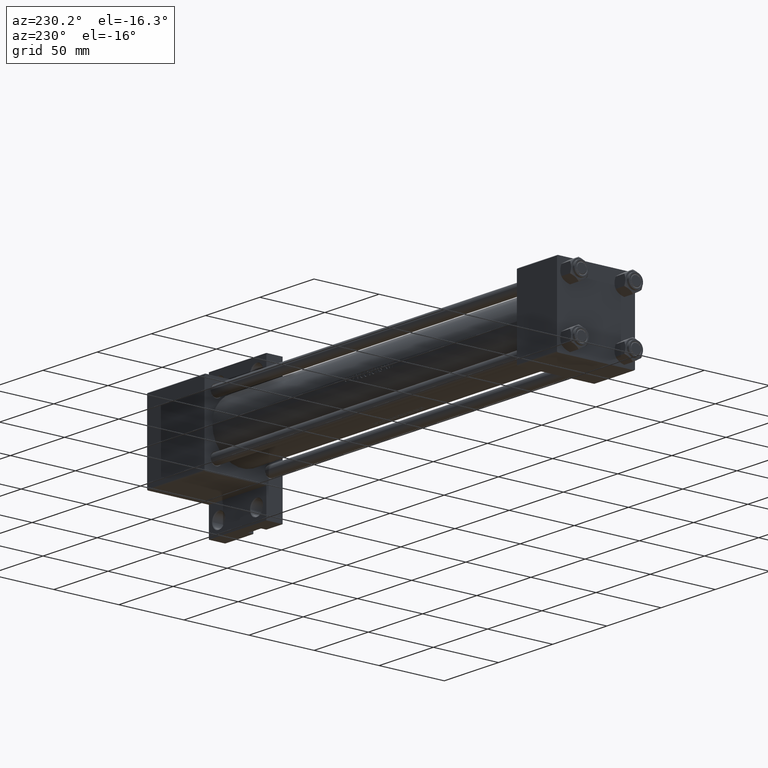
[diagram: clean part render]
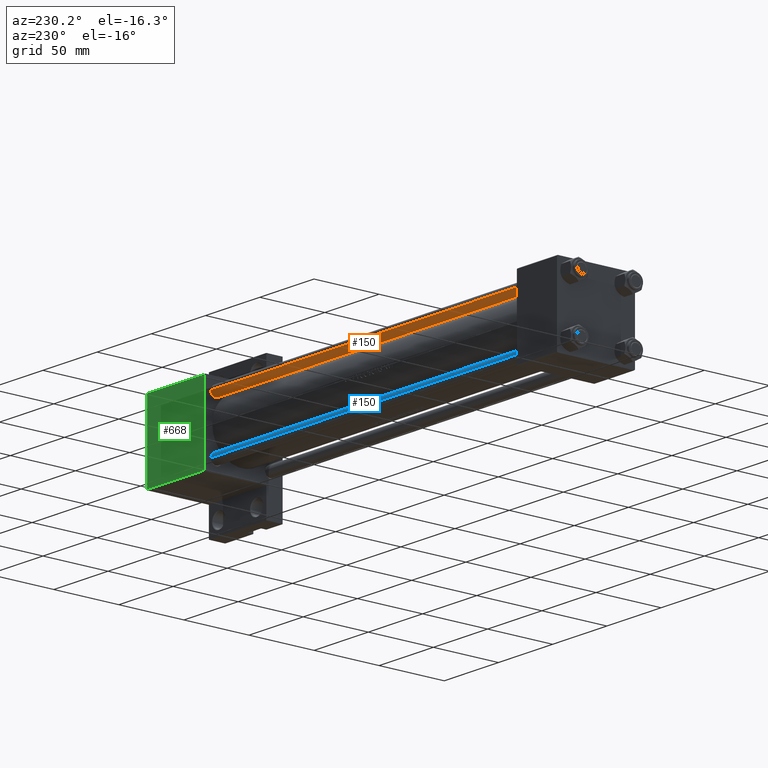
[diagram: same view with three faces highlighted in distinct colors, each labeled with its STEP entity id]
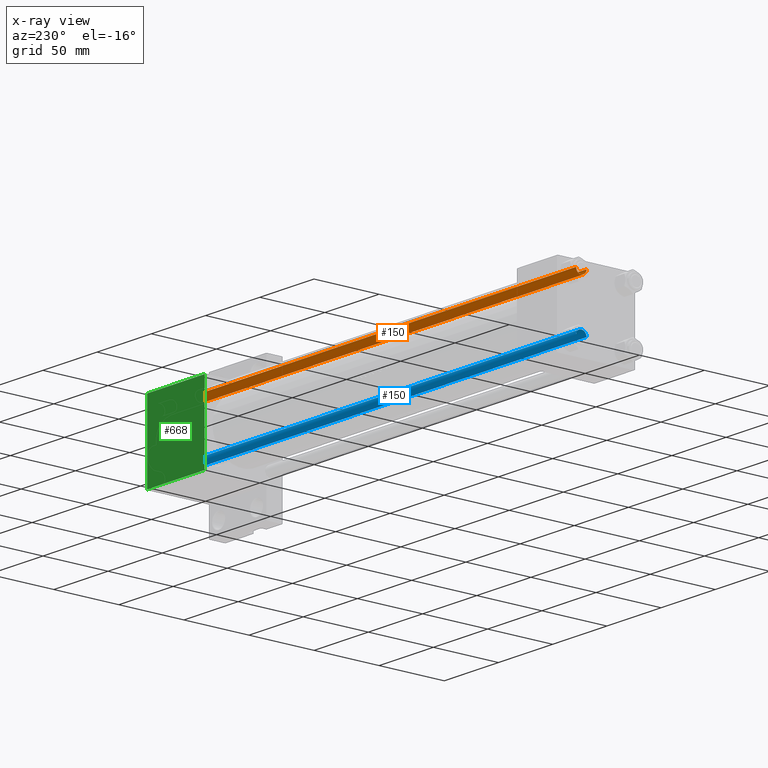
[diagram: x-ray of the same camera — body ghosted, the three highlighted faces saturated]
A machine part, auxiliary view with three faces highlighted in distinct colors.
The next image is the same camera in x-ray (body ghosted, the three faces saturated) — at least one of them is partly hidden behind the body in this view.
Their STEP definitions:

[orange] entity #150 — the highlighted cylindrical surface (edge-blend (fillet) strip) has radius 4 mm, axis along (1, -0, 0).
#150 = ADVANCED_FACE ( 'NONE', ( #4489 ), #8435, .T. ) ;
#465 = VERTEX_POINT ( 'NONE', #15069 ) ;
#658 = AXIS2_PLACEMENT_3D ( 'NONE', #43110, #27859, #27370 ) ;
#751 = VECTOR ( 'NONE', #25468, 1000.000000000000000 ) ;
#1312 = EDGE_CURVE ( 'NONE', #23359, #12713, #16422, .T. ) ;
#2266 = DIRECTION ( 'NONE',  ( 1.000000000000000000, 0.000000000000000000, 0.000000000000000000 ) ) ;
#2549 = CARTESIAN_POINT ( 'NONE',  ( -4.000000000000000000, 0.000000000000000000, 0.5000000000000004441 ) ) ;
#2962 = AXIS2_PLACEMENT_3D ( 'NONE', #40208, #21486, #2266 ) ;
#4012 = CARTESIAN_POINT ( 'NONE',  ( -4.000000000000000000, 0.000000000000000000, 351.5000000000000000 ) ) ;
#4489 = FACE_OUTER_BOUND ( 'NONE', #17412, .T. ) ;
#7141 = CARTESIAN_POINT ( 'NONE',  ( 4.000000000000000000, 4.898587196589412829E-16, 352.0000000000000000 ) ) ;
#8435 = CYLINDRICAL_SURFACE ( 'NONE', #45373, 4.000000000000000000 ) ;
#8648 = ORIENTED_EDGE ( 'NONE', *, *, #1312, .T. ) ;
#12713 = VERTEX_POINT ( 'NONE', #17008 ) ;
#15069 = CARTESIAN_POINT ( 'NONE',  ( 4.000000000000000000, 4.898587196589412829E-16, 0.5000000000000004441 ) ) ;
#16422 = CIRCLE ( 'NONE', #658, 4.000000000000000000 ) ;
#17008 = CARTESIAN_POINT ( 'NONE',  ( 4.000000000000000000, 4.898587196589412829E-16, 351.5000000000000000 ) ) ;
#17412 = EDGE_LOOP ( 'NONE', ( #8648, #17602, #41423, #44899 ) ) ;
#17602 = ORIENTED_EDGE ( 'NONE', *, *, #42831, .T. ) ;
#17729 = EDGE_CURVE ( 'NONE', #23359, #43436, #47889, .T. ) ;
#21486 = DIRECTION ( 'NONE',  ( -0.000000000000000000, -0.000000000000000000, 1.000000000000000000 ) ) ;
#21530 = CARTESIAN_POINT ( 'NONE',  ( -4.000000000000000000, 0.000000000000000000, 352.0000000000000000 ) ) ;
#21753 = VECTOR ( 'NONE', #30066, 1000.000000000000000 ) ;
#23359 = VERTEX_POINT ( 'NONE', #4012 ) ;
#24207 = CIRCLE ( 'NONE', #2962, 4.000000000000000000 ) ;
#25468 = DIRECTION ( 'NONE',  ( -0.000000000000000000, -0.000000000000000000, -1.000000000000000000 ) ) ;
#27370 = DIRECTION ( 'NONE',  ( 1.000000000000000000, 0.000000000000000000, 0.000000000000000000 ) ) ;
#27859 = DIRECTION ( 'NONE',  ( 0.000000000000000000, 0.000000000000000000, -1.000000000000000000 ) ) ;
#29908 = DIRECTION ( 'NONE',  ( -1.000000000000000000, 0.000000000000000000, 0.000000000000000000 ) ) ;
#30066 = DIRECTION ( 'NONE',  ( -0.000000000000000000, -0.000000000000000000, -1.000000000000000000 ) ) ;
#30625 = CARTESIAN_POINT ( 'NONE',  ( 0.000000000000000000, 0.000000000000000000, 352.0000000000000000 ) ) ;
#37522 = DIRECTION ( 'NONE',  ( -0.000000000000000000, -0.000000000000000000, -1.000000000000000000 ) ) ;
#40208 = CARTESIAN_POINT ( 'NONE',  ( 0.000000000000000000, 0.000000000000000000, 0.5000000000000004441 ) ) ;
#40901 = LINE ( 'NONE', #7141, #21753 ) ;
#41423 = ORIENTED_EDGE ( 'NONE', *, *, #45448, .T. ) ;
#42831 = EDGE_CURVE ( 'NONE', #12713, #465, #40901, .T. ) ;
#43110 = CARTESIAN_POINT ( 'NONE',  ( 0.000000000000000000, 0.000000000000000000, 351.5000000000000000 ) ) ;
#43436 = VERTEX_POINT ( 'NONE', #2549 ) ;
#44899 = ORIENTED_EDGE ( 'NONE', *, *, #17729, .F. ) ;
#45373 = AXIS2_PLACEMENT_3D ( 'NONE', #30625, #37522, #29908 ) ;
#45448 = EDGE_CURVE ( 'NONE', #465, #43436, #24207, .T. ) ;
#47889 = LINE ( 'NONE', #21530, #751 ) ;

[blue] entity #150 — the highlighted cylindrical surface (edge-blend (fillet) strip) has radius 4 mm, axis along (-1, -0, 0).
#150 = ADVANCED_FACE ( 'NONE', ( #4489 ), #8435, .T. ) ;
#465 = VERTEX_POINT ( 'NONE', #15069 ) ;
#658 = AXIS2_PLACEMENT_3D ( 'NONE', #43110, #27859, #27370 ) ;
#751 = VECTOR ( 'NONE', #25468, 1000.000000000000000 ) ;
#1312 = EDGE_CURVE ( 'NONE', #23359, #12713, #16422, .T. ) ;
#2266 = DIRECTION ( 'NONE',  ( 1.000000000000000000, 0.000000000000000000, 0.000000000000000000 ) ) ;
#2549 = CARTESIAN_POINT ( 'NONE',  ( -4.000000000000000000, 0.000000000000000000, 0.5000000000000004441 ) ) ;
#2962 = AXIS2_PLACEMENT_3D ( 'NONE', #40208, #21486, #2266 ) ;
#4012 = CARTESIAN_POINT ( 'NONE',  ( -4.000000000000000000, 0.000000000000000000, 351.5000000000000000 ) ) ;
#4489 = FACE_OUTER_BOUND ( 'NONE', #17412, .T. ) ;
#7141 = CARTESIAN_POINT ( 'NONE',  ( 4.000000000000000000, 4.898587196589412829E-16, 352.0000000000000000 ) ) ;
#8435 = CYLINDRICAL_SURFACE ( 'NONE', #45373, 4.000000000000000000 ) ;
#8648 = ORIENTED_EDGE ( 'NONE', *, *, #1312, .T. ) ;
#12713 = VERTEX_POINT ( 'NONE', #17008 ) ;
#15069 = CARTESIAN_POINT ( 'NONE',  ( 4.000000000000000000, 4.898587196589412829E-16, 0.5000000000000004441 ) ) ;
#16422 = CIRCLE ( 'NONE', #658, 4.000000000000000000 ) ;
#17008 = CARTESIAN_POINT ( 'NONE',  ( 4.000000000000000000, 4.898587196589412829E-16, 351.5000000000000000 ) ) ;
#17412 = EDGE_LOOP ( 'NONE', ( #8648, #17602, #41423, #44899 ) ) ;
#17602 = ORIENTED_EDGE ( 'NONE', *, *, #42831, .T. ) ;
#17729 = EDGE_CURVE ( 'NONE', #23359, #43436, #47889, .T. ) ;
#21486 = DIRECTION ( 'NONE',  ( -0.000000000000000000, -0.000000000000000000, 1.000000000000000000 ) ) ;
#21530 = CARTESIAN_POINT ( 'NONE',  ( -4.000000000000000000, 0.000000000000000000, 352.0000000000000000 ) ) ;
#21753 = VECTOR ( 'NONE', #30066, 1000.000000000000000 ) ;
#23359 = VERTEX_POINT ( 'NONE', #4012 ) ;
#24207 = CIRCLE ( 'NONE', #2962, 4.000000000000000000 ) ;
#25468 = DIRECTION ( 'NONE',  ( -0.000000000000000000, -0.000000000000000000, -1.000000000000000000 ) ) ;
#27370 = DIRECTION ( 'NONE',  ( 1.000000000000000000, 0.000000000000000000, 0.000000000000000000 ) ) ;
#27859 = DIRECTION ( 'NONE',  ( 0.000000000000000000, 0.000000000000000000, -1.000000000000000000 ) ) ;
#29908 = DIRECTION ( 'NONE',  ( -1.000000000000000000, 0.000000000000000000, 0.000000000000000000 ) ) ;
#30066 = DIRECTION ( 'NONE',  ( -0.000000000000000000, -0.000000000000000000, -1.000000000000000000 ) ) ;
#30625 = CARTESIAN_POINT ( 'NONE',  ( 0.000000000000000000, 0.000000000000000000, 352.0000000000000000 ) ) ;
#37522 = DIRECTION ( 'NONE',  ( -0.000000000000000000, -0.000000000000000000, -1.000000000000000000 ) ) ;
#40208 = CARTESIAN_POINT ( 'NONE',  ( 0.000000000000000000, 0.000000000000000000, 0.5000000000000004441 ) ) ;
#40901 = LINE ( 'NONE', #7141, #21753 ) ;
#41423 = ORIENTED_EDGE ( 'NONE', *, *, #45448, .T. ) ;
#42831 = EDGE_CURVE ( 'NONE', #12713, #465, #40901, .T. ) ;
#43110 = CARTESIAN_POINT ( 'NONE',  ( 0.000000000000000000, 0.000000000000000000, 351.5000000000000000 ) ) ;
#43436 = VERTEX_POINT ( 'NONE', #2549 ) ;
#44899 = ORIENTED_EDGE ( 'NONE', *, *, #17729, .F. ) ;
#45373 = AXIS2_PLACEMENT_3D ( 'NONE', #30625, #37522, #29908 ) ;
#45448 = EDGE_CURVE ( 'NONE', #465, #43436, #24207, .T. ) ;
#47889 = LINE ( 'NONE', #21530, #751 ) ;

[green] entity #668 — the highlighted planar face has unit normal (0, -1, -0).
#359 = CARTESIAN_POINT ( 'NONE',  ( 377.9999999999999432, -29.50000000000000000, 29.99999999999999289 ) ) ;
#668 = ADVANCED_FACE ( 'NONE', ( #26343 ), #41109, .F. ) ;
#984 = LINE ( 'NONE', #42613, #17853 ) ;
#1003 = ORIENTED_EDGE ( 'NONE', *, *, #44556, .T. ) ;
#1748 = EDGE_CURVE ( 'NONE', #39548, #4570, #15383, .T. ) ;
#3796 = ORIENTED_EDGE ( 'NONE', *, *, #25541, .F. ) ;
#4570 = VERTEX_POINT ( 'NONE', #28007 ) ;
#8499 = AXIS2_PLACEMENT_3D ( 'NONE', #10805, #37409, #23118 ) ;
#9182 = VERTEX_POINT ( 'NONE', #359 ) ;
#9894 = CARTESIAN_POINT ( 'NONE',  ( 377.9999999999999432, 30.00000000000000000, 30.00000000000000000 ) ) ;
#10805 = CARTESIAN_POINT ( 'NONE',  ( 377.9999999999999432, 30.00000000000000000, 30.00000000000000000 ) ) ;
#13250 = LINE ( 'NONE', #17673, #15231 ) ;
#13313 = EDGE_LOOP ( 'NONE', ( #3796, #35237, #13474, #1003 ) ) ;
#13474 = ORIENTED_EDGE ( 'NONE', *, *, #35594, .T. ) ;
#15231 = VECTOR ( 'NONE', #24575, 1000.000000000000000 ) ;
#15383 = LINE ( 'NONE', #30399, #36850 ) ;
#17673 = CARTESIAN_POINT ( 'NONE',  ( 324.9999999999999432, 30.00000000000000000, 30.00000000000000000 ) ) ;
#17853 = VECTOR ( 'NONE', #43091, 1000.000000000000000 ) ;
#23118 = DIRECTION ( 'NONE',  ( 0.000000000000000000, 1.000000000000000000, 1.156482317317871478E-16 ) ) ;
#24575 = DIRECTION ( 'NONE',  ( 0.000000000000000000, -1.000000000000000000, -1.156482317317871478E-16 ) ) ;
#25541 = EDGE_CURVE ( 'NONE', #39548, #9182, #32798, .T. ) ;
#26343 = FACE_OUTER_BOUND ( 'NONE', #13313, .T. ) ;
#27456 = VECTOR ( 'NONE', #47830, 1000.000000000000000 ) ;
#28007 = CARTESIAN_POINT ( 'NONE',  ( 324.9999999999999432, 29.49999999999994316, 30.00000000000000000 ) ) ;
#29219 = CARTESIAN_POINT ( 'NONE',  ( 324.9999999999999432, -29.50000000000000000, 29.99999999999999289 ) ) ;
#30399 = CARTESIAN_POINT ( 'NONE',  ( 324.9999999999999432, 29.49999999999994316, 30.00000000000000000 ) ) ;
#32216 = VERTEX_POINT ( 'NONE', #29219 ) ;
#32798 = LINE ( 'NONE', #9894, #27456 ) ;
#35237 = ORIENTED_EDGE ( 'NONE', *, *, #1748, .T. ) ;
#35594 = EDGE_CURVE ( 'NONE', #4570, #32216, #13250, .T. ) ;
#36850 = VECTOR ( 'NONE', #45186, 1000.000000000000000 ) ;
#37409 = DIRECTION ( 'NONE',  ( 0.000000000000000000, 1.156482317317871478E-16, -1.000000000000000000 ) ) ;
#39548 = VERTEX_POINT ( 'NONE', #44369 ) ;
#41109 = PLANE ( 'NONE',  #8499 ) ;
#42613 = CARTESIAN_POINT ( 'NONE',  ( 377.9999999999999432, -29.50000000000000000, 29.99999999999999289 ) ) ;
#43091 = DIRECTION ( 'NONE',  ( 1.000000000000000000, 0.000000000000000000, 0.000000000000000000 ) ) ;
#44369 = CARTESIAN_POINT ( 'NONE',  ( 377.9999999999999432, 29.49999999999994316, 30.00000000000000000 ) ) ;
#44556 = EDGE_CURVE ( 'NONE', #32216, #9182, #984, .T. ) ;
#45186 = DIRECTION ( 'NONE',  ( -1.000000000000000000, 0.000000000000000000, 0.000000000000000000 ) ) ;
#47830 = DIRECTION ( 'NONE',  ( 0.000000000000000000, -1.000000000000000000, -1.156482317317871478E-16 ) ) ;